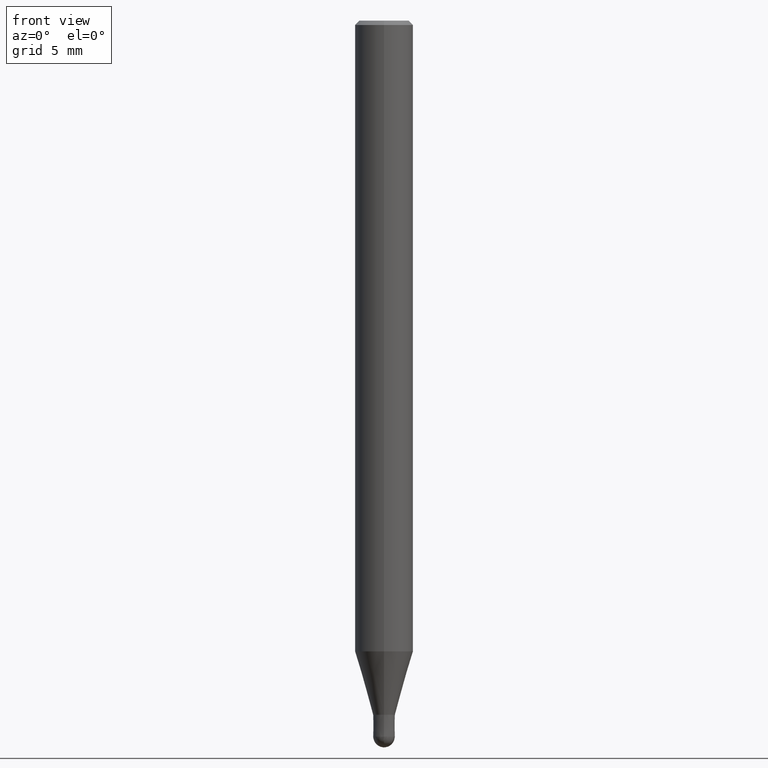
[diagram: clean part render]
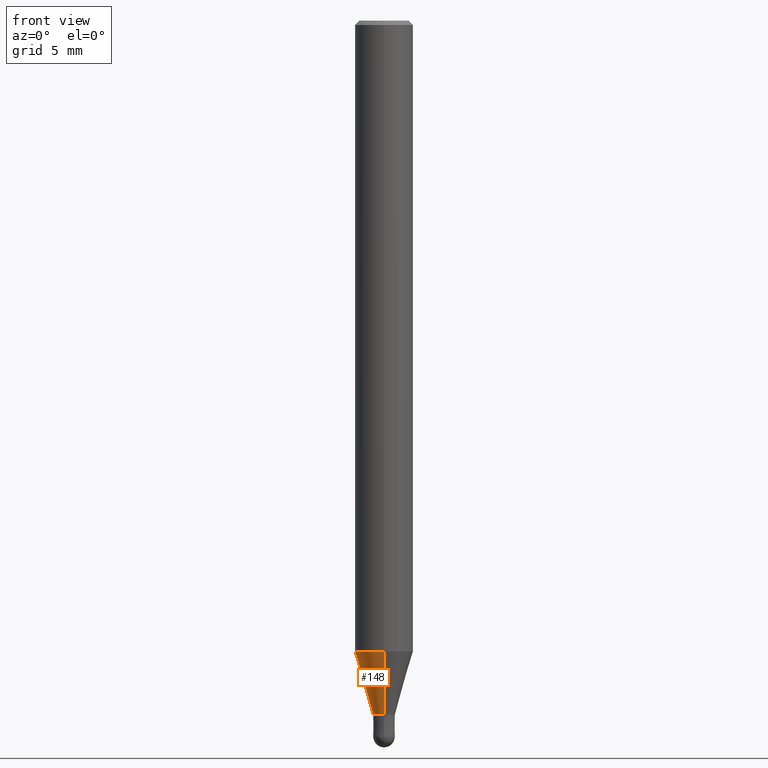
[diagram: same view with one face highlighted and labeled with its STEP entity id]
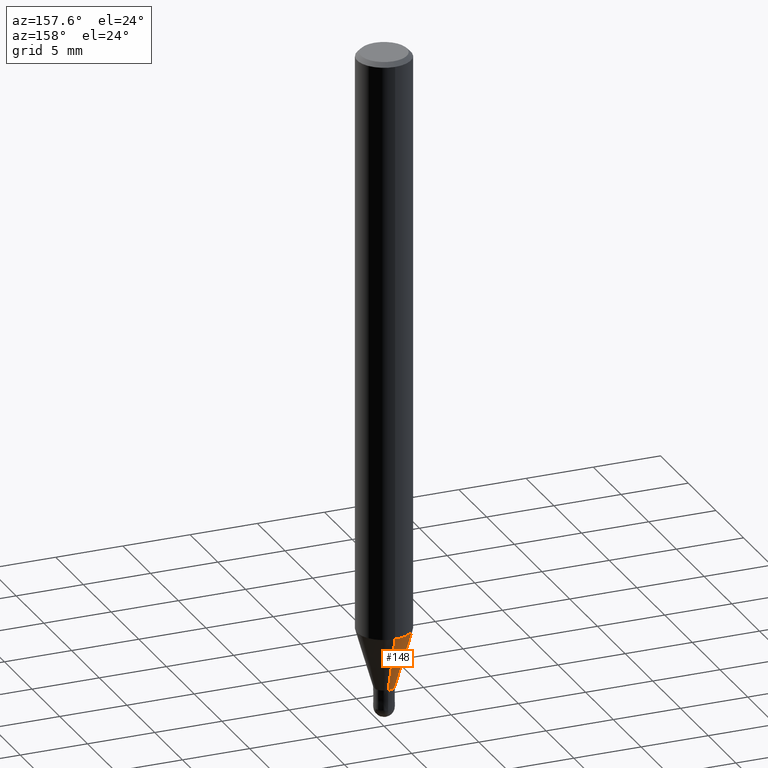
[diagram: same view with one face highlighted and labeled with its STEP entity id]
A machine part, front view. The second image highlights one B-rep face of the part: STEP entity #148.
A second angle (auxiliary view) of the same face is appended — the face is thin or edge-on in the first view.
In plain terms, the highlighted conical surface has half-angle 16.001 deg.
Its self-contained STEP definition (entity closure, byte-faithful):
#100=EDGE_CURVE('',#158,#138,#228,.T.);
#126=EDGE_CURVE('',#138,#186,#258,.T.);
#128=EDGE_CURVE('',#158,#190,#260,.T.);
#138=VERTEX_POINT('',#270);
#148=ADVANCED_FACE('',(#281),#282,.T.);
#158=VERTEX_POINT('',#294);
#170=EDGE_CURVE('',#186,#190,#307,.T.);
#186=VERTEX_POINT('',#326);
#190=VERTEX_POINT('',#330);
#228=LINE('',#364,#365);
#258=CIRCLE('',#405,1.99995);
#260=CIRCLE('',#408,0.74995);
#270=CARTESIAN_POINT('',(2.44915147732706E-016,-1.99995,-43.391));
#281=FACE_OUTER_BOUND('',#432,.T.);
#282=CONICAL_SURFACE('',#433,1.37495,0.279268973819818);
#294=CARTESIAN_POINT('',(9.18393535049092E-017,-0.74995,-47.75));
#307=LINE('',#461,#462);
#326=CARTESIAN_POINT('',(0.0,1.99995,-43.391));
#330=CARTESIAN_POINT('',(0.0,0.74995,-47.75));
#364=CARTESIAN_POINT('',(1.68377250618808E-016,-1.37495,-45.5705));
#365=VECTOR('',#516,1.0);
#405=AXIS2_PLACEMENT_3D('',#558,#559,#560);
#408=AXIS2_PLACEMENT_3D('',#561,#562,#563);
#432=EDGE_LOOP('',(#586,#587,#588,#589));
#433=AXIS2_PLACEMENT_3D('',#590,#591,#592);
#461=CARTESIAN_POINT('',(-1.68377250618808E-016,1.37495,-45.5705));
#462=VECTOR('',#621,1.0);
#516=DIRECTION('',(3.375664374138E-017,-0.27565301809855,0.961257204713265));
#558=CARTESIAN_POINT('',(0.0,0.0,-43.391));
#559=DIRECTION('',(0.0,0.0,-1.0));
#560=DIRECTION('',(0.0,1.0,0.0));
#561=CARTESIAN_POINT('',(0.0,0.0,-47.75));
#562=DIRECTION('',(0.0,0.0,-1.0));
#563=DIRECTION('',(0.0,1.0,0.0));
#586=ORIENTED_EDGE('',*,*,#170,.T.);
#587=ORIENTED_EDGE('',*,*,#128,.F.);
#588=ORIENTED_EDGE('',*,*,#100,.T.);
#589=ORIENTED_EDGE('',*,*,#126,.T.);
#590=CARTESIAN_POINT('',(0.0,0.0,-45.5705));
#591=DIRECTION('',(-0.0,-0.0,1.0));
#592=DIRECTION('',(0.0,1.0,0.0));
#621=DIRECTION('',(3.375664374138E-017,-0.27565301809855,-0.961257204713265));